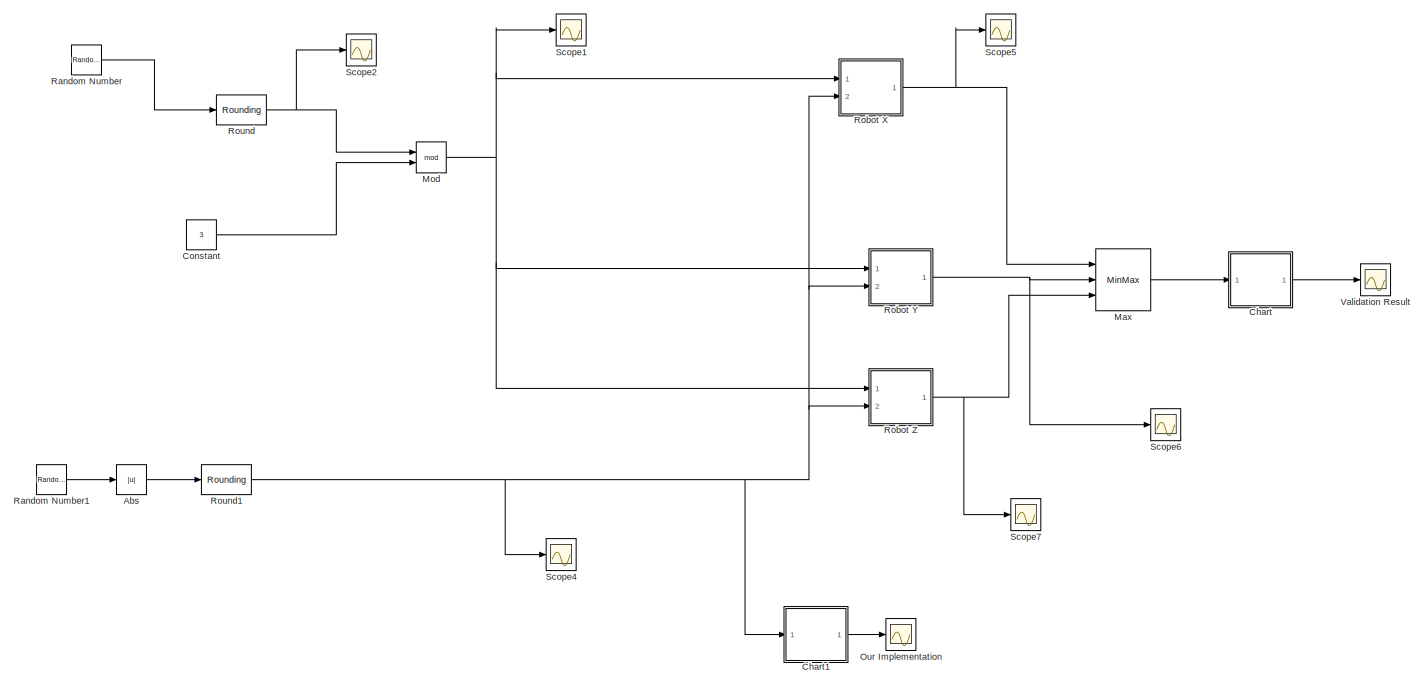
[diagram: root canvas - part 1/3, top left region]
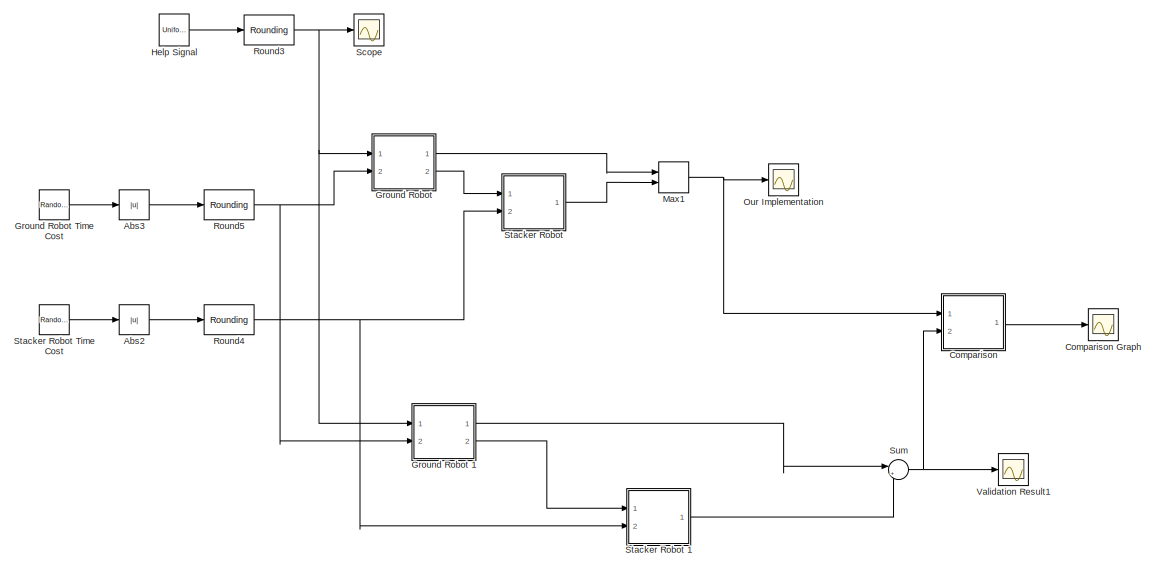
[diagram: root canvas - part 2/3, top right region]
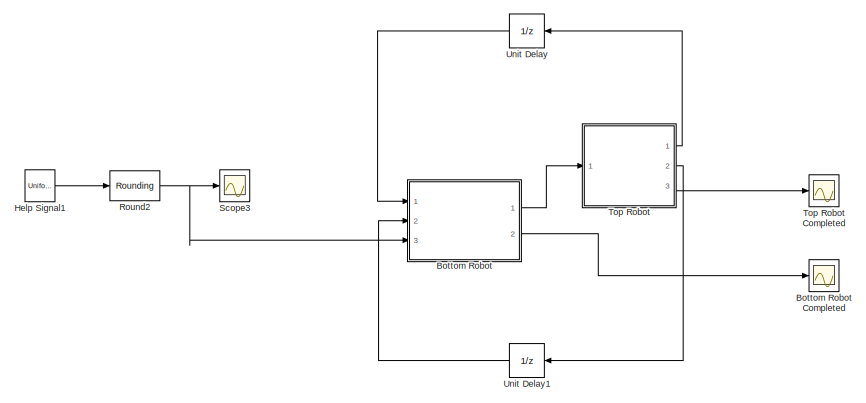
[diagram: root canvas - part 3/3, bottom center region]
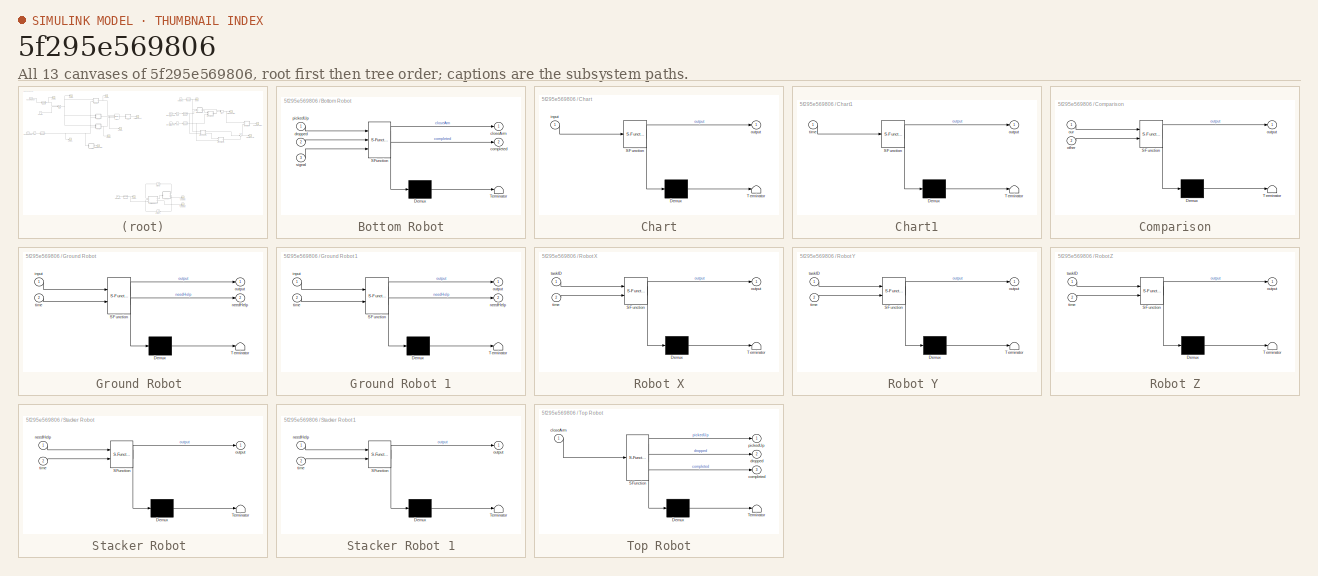
[diagram: thumbnail index - all 13 canvases of the model, root first then tree order]
MODEL slx_5f295e569806
KIND model
CONFIG AbsTol = auto
CONFIG EnableMultiTasking = off
CONFIG FixedStep = auto
CONFIG MaxStep = auto
CONFIG MinStep = auto
CONFIG RelTol = 1e-3
CONFIG SampleTimeConstraint = Unconstrained
CONFIG Solver = VariableStepAuto
CONFIG SolverName = VariableStepAuto
CONFIG StartTime = 0.0
CONFIG StopTime = 15
BLOCK [Abs] Abs
  SaturateOnIntegerOverflow = off
BLOCK [Abs] Abs2
  SaturateOnIntegerOverflow = off
BLOCK [Abs] Abs3
  SaturateOnIntegerOverflow = off
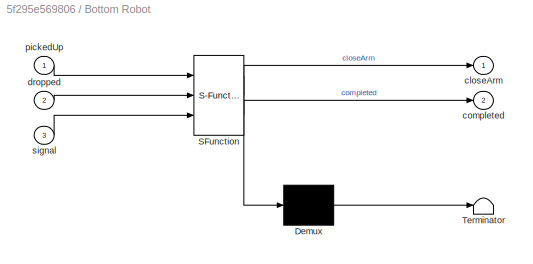
BLOCK [SubSystem] Bottom Robot
  ErrorFcn = Stateflow.Translate.translate
  PermitHierarchicalResolution = ExplicitOnly
  Ports = [3, 2]
  RequestExecContextInheritance = off
  SFBlockType = Chart
  TreatAsAtomicUnit = on
BLOCK [Scope] Bottom Robot Completed
  Floating = off
  NumInputPorts = 1
  Ports = [1]
  ScopeSpecificationString = Simulink.scopes.TimeScopeBlockCfg('CurrentConfiguration', extmgr.ConfigurationSet(extmgr.Configuration('Core','General UI',true),extmgr.Configuration('Core','Source UI',true),extmgr.Configuration('Sources','WiredSimulink',true,'DataLoggingVariableName','ScopeData13'),extmgr.Configuration('Visuals','Time Domain',true,'SerializedDisplays',{struct('MinYLimReal','-0.75','MaxYLimReal','6.75','YLabelRea...<+1436ch>
BLOCK [Demux] Bottom Robot/ Demux 
  Outputs = 1
  Ports = [1, 1]
BLOCK [S-Function] Bottom Robot/ SFunction 
  EnableBusSupport = on
  FunctionName = sf_sfun
  PortCounts = [3 3]
  Ports = [3, 3]
  SFcnIsStateOwnerBlock = off
  SFunctionDeploymentMode = off
  Tag = Stateflow S-Function validationmodel2 8
BLOCK [Terminator] Bottom Robot/ Terminator 
BLOCK [Outport] Bottom Robot/closeArm
  IconDisplay = Port number
BLOCK [Outport] Bottom Robot/completed
  IconDisplay = Port number
  Port = 2
BLOCK [Inport] Bottom Robot/dropped
  IconDisplay = Port number
  Port = 2
BLOCK [Inport] Bottom Robot/pickedUp
  IconDisplay = Port number
BLOCK [Inport] Bottom Robot/signal
  IconDisplay = Port number
  Port = 3
BLOCK [SubSystem] Chart
  ErrorFcn = Stateflow.Translate.translate
  PermitHierarchicalResolution = ExplicitOnly
  Ports = [1, 1]
  RequestExecContextInheritance = off
  SFBlockType = Chart
  TreatAsAtomicUnit = on
BLOCK [Demux] Chart/ Demux 
  Outputs = 1
  Ports = [1, 1]
BLOCK [S-Function] Chart/ SFunction 
  EnableBusSupport = on
  FunctionName = sf_sfun
  PortCounts = [1 2]
  Ports = [1, 2]
  SFcnIsStateOwnerBlock = off
  SFunctionDeploymentMode = off
  Tag = Stateflow S-Function validationmodel2 4
BLOCK [Terminator] Chart/ Terminator 
BLOCK [Inport] Chart/input
  IconDisplay = Port number
BLOCK [Outport] Chart/output
  IconDisplay = Port number
BLOCK [SubSystem] Chart1
  ErrorFcn = Stateflow.Translate.translate
  PermitHierarchicalResolution = ExplicitOnly
  Ports = [1, 1]
  RequestExecContextInheritance = off
  SFBlockType = Chart
  TreatAsAtomicUnit = on
BLOCK [Demux] Chart1/ Demux 
  Outputs = 1
  Ports = [1, 1]
BLOCK [S-Function] Chart1/ SFunction 
  EnableBusSupport = on
  FunctionName = sf_sfun
  PortCounts = [1 2]
  Ports = [1, 2]
  SFcnIsStateOwnerBlock = off
  SFunctionDeploymentMode = off
  Tag = Stateflow S-Function validationmodel2 5
BLOCK [Terminator] Chart1/ Terminator 
BLOCK [Outport] Chart1/output
  IconDisplay = Port number
BLOCK [Inport] Chart1/time
  IconDisplay = Port number
BLOCK [SubSystem] Comparison
  ErrorFcn = Stateflow.Translate.translate
  PermitHierarchicalResolution = ExplicitOnly
  Ports = [2, 1]
  RequestExecContextInheritance = off
  SFBlockType = Chart
  TreatAsAtomicUnit = on
BLOCK [Scope] Comparison Graph 
  Floating = off
  NumInputPorts = 1
  Ports = [1]
  ScopeSpecificationString = Simulink.scopes.TimeScopeBlockCfg('CurrentConfiguration', extmgr.ConfigurationSet(extmgr.Configuration('Core','General UI',true),extmgr.Configuration('Core','Source UI',true),extmgr.Configuration('Sources','WiredSimulink',true,'DataLoggingVariableName','ScopeData12'),extmgr.Configuration('Visuals','Time Domain',true,'SerializedDisplays',{struct('MinYLimReal','-0.125','MaxYLimReal','1.125','YLabelR...<+1430ch>
BLOCK [Demux] Comparison/ Demux 
  Outputs = 1
  Ports = [1, 1]
BLOCK [S-Function] Comparison/ SFunction 
  EnableBusSupport = on
  FunctionName = sf_sfun
  PortCounts = [2 2]
  Ports = [2, 2]
  SFcnIsStateOwnerBlock = off
  SFunctionDeploymentMode = off
  Tag = Stateflow S-Function validationmodel2 11
BLOCK [Terminator] Comparison/ Terminator 
BLOCK [Inport] Comparison/other
  IconDisplay = Port number
  Port = 2
BLOCK [Inport] Comparison/our
  IconDisplay = Port number
BLOCK [Outport] Comparison/output
  IconDisplay = Port number
BLOCK [Constant] Constant
  OutDataTypeStr = double
  Value = 3
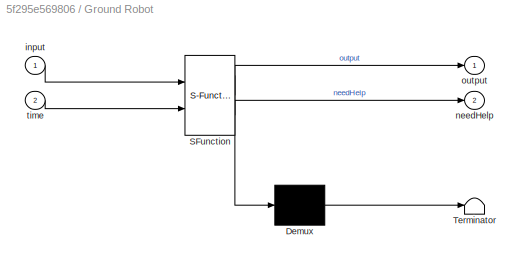
BLOCK [SubSystem] Ground Robot 
  ErrorFcn = Stateflow.Translate.translate
  PermitHierarchicalResolution = ExplicitOnly
  Ports = [2, 2]
  RequestExecContextInheritance = off
  SFBlockType = Chart
  TreatAsAtomicUnit = on
BLOCK [Demux] Ground Robot / Demux 
  Outputs = 1
  Ports = [1, 1]
BLOCK [S-Function] Ground Robot / SFunction 
  EnableBusSupport = on
  FunctionName = sf_sfun
  PortCounts = [2 3]
  Ports = [2, 3]
  SFcnIsStateOwnerBlock = off
  SFunctionDeploymentMode = off
  Tag = Stateflow S-Function validationmodel2 6
BLOCK [Terminator] Ground Robot / Terminator 
BLOCK [Inport] Ground Robot /input
  IconDisplay = Port number
BLOCK [Outport] Ground Robot /needHelp
  IconDisplay = Port number
  Port = 2
BLOCK [Outport] Ground Robot /output
  IconDisplay = Port number
BLOCK [Inport] Ground Robot /time
  IconDisplay = Port number
  Port = 2
BLOCK [SubSystem] Ground Robot 1
  ErrorFcn = Stateflow.Translate.translate
  PermitHierarchicalResolution = ExplicitOnly
  Ports = [2, 2]
  RequestExecContextInheritance = off
  SFBlockType = Chart
  TreatAsAtomicUnit = on
BLOCK [Demux] Ground Robot 1/ Demux 
  Outputs = 1
  Ports = [1, 1]
BLOCK [S-Function] Ground Robot 1/ SFunction 
  EnableBusSupport = on
  FunctionName = sf_sfun
  PortCounts = [2 3]
  Ports = [2, 3]
  SFcnIsStateOwnerBlock = off
  SFunctionDeploymentMode = off
  Tag = Stateflow S-Function validationmodel2 9
BLOCK [Terminator] Ground Robot 1/ Terminator 
BLOCK [Inport] Ground Robot 1/input
  IconDisplay = Port number
BLOCK [Outport] Ground Robot 1/needHelp
  IconDisplay = Port number
  Port = 2
BLOCK [Outport] Ground Robot 1/output
  IconDisplay = Port number
BLOCK [Inport] Ground Robot 1/time
  IconDisplay = Port number
  Port = 2
BLOCK [RandomNumber] Ground Robot Time Cost
  Mean = 4
  SampleTime = 1
BLOCK [UniformRandomNumber] Help Signal
  Minimum = 0
  SampleTime = 1
BLOCK [UniformRandomNumber] Help Signal1
  Minimum = 0
  SampleTime = 1
BLOCK [MinMax] Max
  Function = max
  InputSameDT = off
  Inputs = 3
  Ports = [3, 1]
  SaturateOnIntegerOverflow = off
BLOCK [MinMax] Max1
  Function = max
  InputSameDT = off
  Inputs = 2
  Ports = [2, 1]
  SaturateOnIntegerOverflow = off
BLOCK [Math] Mod
  Operator = mod
  Ports = [2, 1]
BLOCK [Scope] Our Implementation
  Floating = off
  NumInputPorts = 1
  Ports = [1]
  ScopeSpecificationString = Simulink.scopes.TimeScopeBlockCfg('CurrentConfiguration', extmgr.ConfigurationSet(extmgr.Configuration('Core','General UI',true),extmgr.Configuration('Core','Source UI',true),extmgr.Configuration('Sources','WiredSimulink',true,'DataLoggingVariableName','ScopeData7'),extmgr.Configuration('Visuals','Time Domain',true,'SerializedDisplays',{struct('MinYLimReal','-0.75','MaxYLimReal','6.75','YLabelReal...<+1417ch>
BLOCK [Scope] Our Implementation 
  Floating = off
  NumInputPorts = 1
  Ports = [1]
  ScopeSpecificationString = Simulink.scopes.TimeScopeBlockCfg('CurrentConfiguration', extmgr.ConfigurationSet(extmgr.Configuration('Core','General UI',true),extmgr.Configuration('Core','Source UI',true),extmgr.Configuration('Sources','WiredSimulink',true,'DataLoggingVariableName','ScopeData10'),extmgr.Configuration('Visuals','Time Domain',true,'SerializedDisplays',{struct('MinYLimReal','-2.625','MaxYLimReal','23.625','YLabel...<+1430ch>
BLOCK [RandomNumber] Random Number
  Mean = 2
  SampleTime = 1
  Seed = 11
  Variance = 3
BLOCK [RandomNumber] Random Number1
  Mean = 4
  SampleTime = 1
  Seed = 3
BLOCK [SubSystem] Robot X
  ErrorFcn = Stateflow.Translate.translate
  PermitHierarchicalResolution = ExplicitOnly
  Ports = [2, 1]
  RequestExecContextInheritance = off
  SFBlockType = Chart
  TreatAsAtomicUnit = on
BLOCK [Demux] Robot X/ Demux 
  Outputs = 1
  Ports = [1, 1]
BLOCK [S-Function] Robot X/ SFunction 
  EnableBusSupport = on
  FunctionName = sf_sfun
  PortCounts = [2 2]
  Ports = [2, 2]
  SFcnIsStateOwnerBlock = off
  SFunctionDeploymentMode = off
  Tag = Stateflow S-Function validationmodel2 3
BLOCK [Terminator] Robot X/ Terminator 
BLOCK [Outport] Robot X/output
  IconDisplay = Port number
BLOCK [Inport] Robot X/taskID
  IconDisplay = Port number
BLOCK [Inport] Robot X/time
  IconDisplay = Port number
  Port = 2
BLOCK [SubSystem] Robot Y 
  ErrorFcn = Stateflow.Translate.translate
  PermitHierarchicalResolution = ExplicitOnly
  Ports = [2, 1]
  RequestExecContextInheritance = off
  SFBlockType = Chart
  TreatAsAtomicUnit = on
BLOCK [Demux] Robot Y / Demux 
  Outputs = 1
  Ports = [1, 1]
BLOCK [S-Function] Robot Y / SFunction 
  EnableBusSupport = on
  FunctionName = sf_sfun
  PortCounts = [2 2]
  Ports = [2, 2]
  SFcnIsStateOwnerBlock = off
  SFunctionDeploymentMode = off
  Tag = Stateflow S-Function validationmodel2 2
BLOCK [Terminator] Robot Y / Terminator 
BLOCK [Outport] Robot Y /output
  IconDisplay = Port number
BLOCK [Inport] Robot Y /taskID
  IconDisplay = Port number
BLOCK [Inport] Robot Y /time
  IconDisplay = Port number
  Port = 2
BLOCK [SubSystem] Robot Z
  ErrorFcn = Stateflow.Translate.translate
  PermitHierarchicalResolution = ExplicitOnly
  Ports = [2, 1]
  RequestExecContextInheritance = off
  SFBlockType = Chart
  TreatAsAtomicUnit = on
BLOCK [Demux] Robot Z/ Demux 
  Outputs = 1
  Ports = [1, 1]
BLOCK [S-Function] Robot Z/ SFunction 
  EnableBusSupport = on
  FunctionName = sf_sfun
  PortCounts = [2 2]
  Ports = [2, 2]
  SFcnIsStateOwnerBlock = off
  SFunctionDeploymentMode = off
  Tag = Stateflow S-Function validationmodel2 1
BLOCK [Terminator] Robot Z/ Terminator 
BLOCK [Outport] Robot Z/output
  IconDisplay = Port number
BLOCK [Inport] Robot Z/taskID
  IconDisplay = Port number
BLOCK [Inport] Robot Z/time
  IconDisplay = Port number
  Port = 2
BLOCK [Rounding] Round
  Operator = round
BLOCK [Rounding] Round1
  Operator = round
BLOCK [Rounding] Round2
  Operator = round
BLOCK [Rounding] Round3
  Operator = round
BLOCK [Rounding] Round4
  Operator = round
BLOCK [Rounding] Round5
  Operator = round
BLOCK [Scope] Scope
  Floating = off
  NumInputPorts = 1
  Ports = [1]
  ScopeSpecificationString = Simulink.scopes.TimeScopeBlockCfg('CurrentConfiguration', extmgr.ConfigurationSet(extmgr.Configuration('Core','General UI',true),extmgr.Configuration('Core','Source UI',true),extmgr.Configuration('Sources','WiredSimulink',true,'DataLoggingVariableName','ScopeData9'),extmgr.Configuration('Visuals','Time Domain',true,'SerializedDisplays',{struct('MinYLimReal','-0.125','MaxYLimReal','1.125','YLabelRe...<+1382ch>
BLOCK [Scope] Scope1
  Floating = off
  NumInputPorts = 1
  Ports = [1]
  ScopeSpecificationString = Simulink.scopes.TimeScopeBlockCfg('CurrentConfiguration', extmgr.ConfigurationSet(extmgr.Configuration('Core','General UI',true),extmgr.Configuration('Core','Source UI',true),extmgr.Configuration('Sources','WiredSimulink',true,'DataLoggingVariableName','ScopeData1'),extmgr.Configuration('Visuals','Time Domain',true,'SerializedDisplays',{struct('MinYLimReal','-0.25','MaxYLimReal','2.25','YLabelReal...<+1417ch>
BLOCK [Scope] Scope2
  Floating = off
  NumInputPorts = 1
  Ports = [1]
  ScopeSpecificationString = Simulink.scopes.TimeScopeBlockCfg('CurrentConfiguration', extmgr.ConfigurationSet(extmgr.Configuration('Core','General UI',true),extmgr.Configuration('Core','Source UI',true),extmgr.Configuration('Sources','WiredSimulink',true,'DataLoggingVariableName','ScopeData2'),extmgr.Configuration('Visuals','Time Domain',true,'SerializedDisplays',{struct('MinYLimReal','-4.00000','MaxYLimReal','6.00000','YLab...<+1393ch>
BLOCK [Scope] Scope3
  Floating = off
  NumInputPorts = 1
  Ports = [1]
  ScopeSpecificationString = Simulink.scopes.TimeScopeBlockCfg('CurrentConfiguration', extmgr.ConfigurationSet(extmgr.Configuration('Core','General UI',true),extmgr.Configuration('Core','Source UI',true),extmgr.Configuration('Sources','WiredSimulink',true,'DataLoggingVariableName','ScopeData14'),extmgr.Configuration('Visuals','Time Domain',true,'SerializedDisplays',{struct('MinYLimReal','-0.125','MaxYLimReal','1.125','YLabelR...<+1383ch>
BLOCK [Scope] Scope4
  Floating = off
  NumInputPorts = 1
  Ports = [1]
  ScopeSpecificationString = Simulink.scopes.TimeScopeBlockCfg('CurrentConfiguration', extmgr.ConfigurationSet(extmgr.Configuration('Core','General UI',true),extmgr.Configuration('Core','Source UI',true),extmgr.Configuration('Sources','WiredSimulink',true,'DataLoggingVariableName','ScopeData3'),extmgr.Configuration('Visuals','Time Domain',true,'SerializedDisplays',{struct('MinYLimReal','0.375','MaxYLimReal','6.625','YLabelRea...<+1420ch>
BLOCK [Scope] Scope5
  Floating = off
  NumInputPorts = 1
  Ports = [1]
  ScopeSpecificationString = Simulink.scopes.TimeScopeBlockCfg('CurrentConfiguration', extmgr.ConfigurationSet(extmgr.Configuration('Core','General UI',true),extmgr.Configuration('Core','Source UI',true),extmgr.Configuration('Sources','WiredSimulink',true,'DataLoggingVariableName','ScopeData4'),extmgr.Configuration('Visuals','Time Domain',true,'SerializedDisplays',{struct('MinYLimReal','-0.625','MaxYLimReal','5.625','YLabelRe...<+1427ch>
BLOCK [Scope] Scope6
  Floating = off
  NumInputPorts = 1
  Ports = [1]
  ScopeSpecificationString = Simulink.scopes.TimeScopeBlockCfg('CurrentConfiguration', extmgr.ConfigurationSet(extmgr.Configuration('Core','General UI',true),extmgr.Configuration('Core','Source UI',true),extmgr.Configuration('Sources','WiredSimulink',true,'DataLoggingVariableName','ScopeData5'),extmgr.Configuration('Visuals','Time Domain',true,'SerializedDisplays',{struct('MinYLimReal','-0.625','MaxYLimReal','5.625','YLabelRe...<+1428ch>
BLOCK [Scope] Scope7
  Floating = off
  NumInputPorts = 1
  Ports = [1]
  ScopeSpecificationString = Simulink.scopes.TimeScopeBlockCfg('CurrentConfiguration', extmgr.ConfigurationSet(extmgr.Configuration('Core','General UI',true),extmgr.Configuration('Core','Source UI',true),extmgr.Configuration('Sources','WiredSimulink',true,'DataLoggingVariableName','ScopeData6'),extmgr.Configuration('Visuals','Time Domain',true,'SerializedDisplays',{struct('MinYLimReal','-0.625','MaxYLimReal','5.625','YLabelRe...<+1427ch>
BLOCK [SubSystem] Stacker Robot 
  ErrorFcn = Stateflow.Translate.translate
  PermitHierarchicalResolution = ExplicitOnly
  Ports = [2, 1]
  RequestExecContextInheritance = off
  SFBlockType = Chart
  TreatAsAtomicUnit = on
BLOCK [Demux] Stacker Robot / Demux 
  Outputs = 1
  Ports = [1, 1]
BLOCK [S-Function] Stacker Robot / SFunction 
  EnableBusSupport = on
  FunctionName = sf_sfun
  PortCounts = [2 2]
  Ports = [2, 2]
  SFcnIsStateOwnerBlock = off
  SFunctionDeploymentMode = off
  Tag = Stateflow S-Function validationmodel2 7
BLOCK [Terminator] Stacker Robot / Terminator 
BLOCK [Inport] Stacker Robot /needHelp
  IconDisplay = Port number
BLOCK [Outport] Stacker Robot /output
  IconDisplay = Port number
BLOCK [Inport] Stacker Robot /time
  IconDisplay = Port number
  Port = 2
BLOCK [SubSystem] Stacker Robot 1
  ErrorFcn = Stateflow.Translate.translate
  PermitHierarchicalResolution = ExplicitOnly
  Ports = [2, 1]
  RequestExecContextInheritance = off
  SFBlockType = Chart
  TreatAsAtomicUnit = on
BLOCK [Demux] Stacker Robot 1/ Demux 
  Outputs = 1
  Ports = [1, 1]
BLOCK [S-Function] Stacker Robot 1/ SFunction 
  EnableBusSupport = on
  FunctionName = sf_sfun
  PortCounts = [2 2]
  Ports = [2, 2]
  SFcnIsStateOwnerBlock = off
  SFunctionDeploymentMode = off
  Tag = Stateflow S-Function validationmodel2 10
BLOCK [Terminator] Stacker Robot 1/ Terminator 
BLOCK [Inport] Stacker Robot 1/needHelp
  IconDisplay = Port number
BLOCK [Outport] Stacker Robot 1/output
  IconDisplay = Port number
BLOCK [Inport] Stacker Robot 1/time
  IconDisplay = Port number
  Port = 2
BLOCK [RandomNumber] Stacker Robot Time Cost 
  Mean = 4
  SampleTime = 1
  Seed = 1
BLOCK [Sum] Sum
  IconShape = round
  InputSameDT = off
  Inputs = |++
  OutDataTypeStr = Inherit: Inherit via internal rule
  Ports = [2, 1]
  SaturateOnIntegerOverflow = off
BLOCK [SubSystem] Top Robot
  ErrorFcn = Stateflow.Translate.translate
  PermitHierarchicalResolution = ExplicitOnly
  Ports = [1, 3]
  RequestExecContextInheritance = off
  SFBlockType = Chart
  TreatAsAtomicUnit = on
BLOCK [Scope] Top Robot Completed
  Floating = off
  NumInputPorts = 1
  Ports = [1]
  ScopeSpecificationString = Simulink.scopes.TimeScopeBlockCfg('CurrentConfiguration', extmgr.ConfigurationSet(extmgr.Configuration('Core','General UI',true),extmgr.Configuration('Core','Source UI',true),extmgr.Configuration('Sources','WiredSimulink',true,'DataLoggingVariableName','ScopeData8'),extmgr.Configuration('Visuals','Time Domain',true,'SerializedDisplays',{struct('MinYLimReal','-0.75','MaxYLimReal','6.75','YLabelReal...<+1432ch>
BLOCK [Demux] Top Robot/ Demux 
  Outputs = 1
  Ports = [1, 1]
BLOCK [S-Function] Top Robot/ SFunction 
  EnableBusSupport = on
  FunctionName = sf_sfun
  PortCounts = [1 4]
  Ports = [1, 4]
  SFcnIsStateOwnerBlock = off
  SFunctionDeploymentMode = off
  Tag = Stateflow S-Function validationmodel2 12
BLOCK [Terminator] Top Robot/ Terminator 
BLOCK [Inport] Top Robot/closeArm
  IconDisplay = Port number
BLOCK [Outport] Top Robot/completed
  IconDisplay = Port number
  Port = 3
BLOCK [Outport] Top Robot/dropped
  IconDisplay = Port number
  Port = 2
BLOCK [Outport] Top Robot/pickedUp
  IconDisplay = Port number
BLOCK [UnitDelay] Unit Delay
  InputProcessing = Elements as channels (sample based)
BLOCK [UnitDelay] Unit Delay1
  InputProcessing = Elements as channels (sample based)
BLOCK [Scope] Validation Result
  Floating = off
  NumInputPorts = 1
  Ports = [1]
  ScopeSpecificationString = Simulink.scopes.TimeScopeBlockCfg('CurrentConfiguration', extmgr.ConfigurationSet(extmgr.Configuration('Core','General UI',true),extmgr.Configuration('Core','Source UI',true),extmgr.Configuration('Sources','WiredSimulink',true),extmgr.Configuration('Visuals','Time Domain',true,'SerializedDisplays',{struct('MinYLimReal','-5.125','MaxYLimReal','46.125','YLabelReal','','MinYLimMag','0.00000','MaxYLim...<+1389ch>
BLOCK [Scope] Validation Result1
  Floating = off
  NumInputPorts = 1
  Ports = [1]
  ScopeSpecificationString = Simulink.scopes.TimeScopeBlockCfg('CurrentConfiguration', extmgr.ConfigurationSet(extmgr.Configuration('Core','General UI',true),extmgr.Configuration('Core','Source UI',true),extmgr.Configuration('Sources','WiredSimulink',true,'DataLoggingVariableName','ScopeData11'),extmgr.Configuration('Visuals','Time Domain',true,'SerializedDisplays',{struct('MinYLimReal','-1.25','MaxYLimReal','11.25','YLabelRe...<+1421ch>
LINE Abs2:1 -> Round4:1
LINE Abs3:1 -> Round5:1
LINE Abs:1 -> Round1:1
LINE Bottom Robot:1 -> Top Robot:1
LINE Bottom Robot:2 -> Bottom Robot Completed:1
LINE Chart1:1 -> Our Implementation :1
LINE Chart:1 -> Validation Result:1
LINE Comparison:1 -> Comparison Graph :1
LINE Constant:1 -> Mod:2
LINE Ground Robot 1:1 -> Sum:1
LINE Ground Robot 1:2 -> Stacker Robot 1:1
LINE Ground Robot :1 -> Max1:1
LINE Ground Robot :2 -> Stacker Robot :1
LINE Ground Robot Time Cost:1 -> Abs3:1
LINE Help Signal1:1 -> Round2:1
LINE Help Signal:1 -> Round3:1
NET Max1:1 -> Comparison:1, Our Implementation:1
LINE Max:1 -> Chart:1
NET Mod:1 -> Robot X:1, Robot Y :1, Robot Z:1, Scope1:1
LINE Random Number1:1 -> Abs:1
LINE Random Number:1 -> Round:1
NET Robot X:1 -> Max:1, Scope5:1
NET Robot Y :1 -> Max:2, Scope6:1
NET Robot Z:1 -> Max:3, Scope7:1
NET Round1:1 -> Chart1:1, Robot X:2, Robot Y :2, Robot Z:2, Scope4:1
NET Round2:1 -> Bottom Robot:3, Scope3:1
NET Round3:1 -> Ground Robot 1:1, Ground Robot :1, Scope:1
NET Round4:1 -> Stacker Robot 1:2, Stacker Robot :2
NET Round5:1 -> Ground Robot 1:2, Ground Robot :2
NET Round:1 -> Mod:1, Scope2:1
LINE Stacker Robot 1:1 -> Sum:2
LINE Stacker Robot :1 -> Max1:2
LINE Stacker Robot Time Cost :1 -> Abs2:1
NET Sum:1 -> Comparison:2, Validation Result1:1
LINE Top Robot:1 -> Unit Delay:1
LINE Top Robot:2 -> Unit Delay1:1
LINE Top Robot:3 -> Top Robot Completed:1
LINE Unit Delay1:1 -> Bottom Robot:2
LINE Unit Delay:1 -> Bottom Robot:1
note: NET lines group one-source signal fan-out (src -> all destinations, sorted); 1:1 wires keep LINE
CHART Robot Z states=3 transitions=5
  STATE_LABEL 'INIT\nduring: oldTime = 0\nduring: output = 1\n'
  STATE_LABEL 'BUSY\nduring: output = 1\nduring: oldTime = oldTime - 1'
  STATE_LABEL 'FASTFORWARD'
CHART Robot Y
 states=3 transitions=5
  STATE_LABEL 'INIT\nduring: oldTime = 0\nduring: output = 1\n'
  STATE_LABEL 'BUSY\nduring: output = 1\nduring: oldTime = oldTime - 1'
  STATE_LABEL 'FASTFORWARD'
CHART Robot X states=3 transitions=5
  STATE_LABEL 'INIT\nduring: oldTime = 0\nduring: output = 1\n'
  STATE_LABEL 'BUSY\nduring: output = 1\nduring: oldTime = oldTime - 1'
  STATE_LABEL 'FASTFORWARD'
CHART Chart states=1 transitions=1
  STATE_LABEL 'IDLE\nentry: output = 0\nduring: output = output + input'
CHART Chart1 states=11 transitions=32
  STATE_LABEL 'INIT\nentry: x = 0\nentry: y = 0\nentry: z = 0\nentry: output = 0\nduring: x = 0\nduring: y = 0\nduring: z = 0\nduring: output = output + 1'
  STATE_LABEL 'Z\nduring: z = z - 1\nduring: output = output + 1'
  STATE_LABEL 'XZ\nduring: x = x - 1\nduring: z = z - 1\nduring: output = output + 1'
  STATE_LABEL 'YZ\nduring: y = y - 1\nduring: z = z - 1\nduring: output = output + 1'
  STATE_LABEL 'Y\nduring: y = y - 1\nduring: output = output + 1'
  STATE_LABEL 'X\nduring: x = x - 1\nduring: output = output + 1'
  STATE_LABEL 'XY\nduring: x = x - 1\nduring: y = y - 1\nduring: output = output + 1'
  STATE_LABEL 'XXYZ\nduring: x = x - 1\nduring: y = y - 1\nduring: z = z - 1'
  STATE_LABEL 'XYZ\nduring: x = x - 1\nduring: y = y - 1\nduring: z = z - 1\nduring: output = output + 1'
  STATE_LABEL 'XYZZ\nduring: x = x - 1\nduring: y = y - 1\nduring: z = z - 1'
  STATE_LABEL 'XYYZ\nduring: x = x - 1\nduring: y = y - 1\nduring: z = z - 1'
CHART Ground Robot
 states=2 transitions=3
  STATE_LABEL 'INIT\nentry: needHelp = 0\nentry: output = 0\nduring: needHelp = 0\nduring: output = time'
  STATE_LABEL 'HELP\nduring: needHelp = 1\nduring: output = time'
CHART Stacker Robot
 states=2 transitions=3
  STATE_LABEL 'INIT\nentry: output = 0\nduring: output = 0'
  STATE_LABEL 'HELP\nduring: output = time'
CHART Bottom Robot states=4 transitions=5
  STATE_LABEL 'INIT\n\nduring: time = time + 1\nduring: closeArm = 0'
  STATE_LABEL 'DROP\n'
  STATE_LABEL 'TRAVEL\nduring: closeArm = 1\nduring: time = time + 1'
  STATE_LABEL 'IDLE\n'
CHART Ground Robot
1 states=2 transitions=3
  STATE_LABEL 'INIT\nentry: needHelp = 0\nentry: output = 0\nduring: needHelp = 0\nduring: output = time'
  STATE_LABEL 'HELP\nduring: needHelp = 1\nduring: output = time'
CHART Stacker Robot
1 states=2 transitions=3
  STATE_LABEL 'INIT\nentry: output = 0\nduring: output = 0'
  STATE_LABEL 'HELP\nduring: output = time'
CHART Comparison states=3 transitions=6
  STATE_LABEL 'INIT\nentry: output = 0\nduring: output = 0'
  STATE_LABEL 'OTHER\nduring: output = -1'
  STATE_LABEL 'OUR\nduring: output = 1\n'
CHART Top Robot states=4 transitions=5
  STATE_LABEL 'INIT\n\nduring: time = time + 1\nduring: pickedUp = 0'
  STATE_LABEL 'DROP\nduring: time = time + 1\n'
  STATE_LABEL 'IDLE\nduring: time = time + 1\n'
  STATE_LABEL 'TRAVEL'
